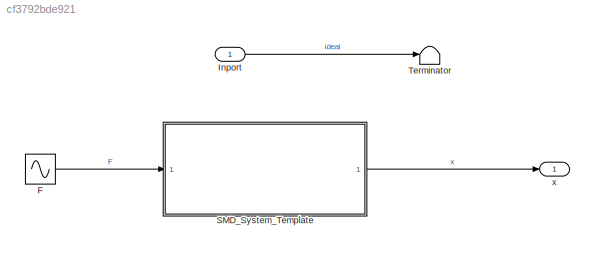
MODEL slx_cf3792bde921
KIND model
CONFIG AbsTol = auto
CONFIG EnableMultiTasking = off
CONFIG FixedStep = auto
CONFIG MaxStep = 0.01
CONFIG MinStep = auto
CONFIG RelTol = 1e-3
CONFIG SampleTimeConstraint = Unconstrained
CONFIG SolverName = VariableStepAuto
CONFIG StartTime = 0.0
CONFIG StopTime = 10
WORKSPACE source: mxarray member
WORKSPACE M = 10
WORKSPACE b = 50
WORKSPACE k = 100
BLOCK [Sin] F
  Commented = on
  SampleTime = 0
BLOCK [Inport] Inport
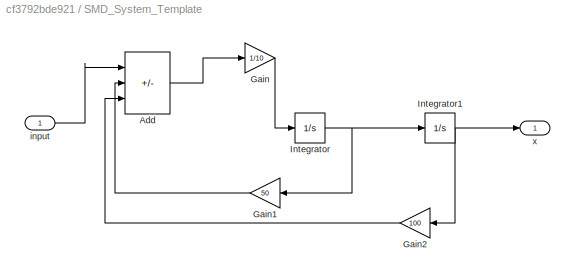
BLOCK [SubSystem] SMD_System_Template
BLOCK [Sum] SMD_System_Template/Add
  IconShape = rectangular
  Inputs = +--
BLOCK [Gain] SMD_System_Template/Gain
  Gain = 1/10
BLOCK [Gain] SMD_System_Template/Gain1
  Gain = 50
  NameLocation = top
BLOCK [Gain] SMD_System_Template/Gain2
  Gain = 100
  NameLocation = top
BLOCK [Integrator] SMD_System_Template/Integrator
BLOCK [Integrator] SMD_System_Template/Integrator1
BLOCK [Inport] SMD_System_Template/input
BLOCK [Outport] SMD_System_Template/x
BLOCK [Terminator] Terminator
BLOCK [Outport] x
LINE F:1 -> SMD_System_Template:1
LINE Inport:1 -> Terminator:1
LINE SMD_System_Template/Add:1 -> SMD_System_Template/Gain:1
LINE SMD_System_Template/Gain1:1 -> SMD_System_Template/Add:2
LINE SMD_System_Template/Gain2:1 -> SMD_System_Template/Add:3
LINE SMD_System_Template/Gain:1 -> SMD_System_Template/Integrator:1
NET SMD_System_Template/Integrator1:1 -> SMD_System_Template/Gain2:1, SMD_System_Template/x:1
NET SMD_System_Template/Integrator:1 -> SMD_System_Template/Gain1:1, SMD_System_Template/Integrator1:1
LINE SMD_System_Template/input:1 -> SMD_System_Template/Add:1
LINE SMD_System_Template:1 -> x:1
note: NET lines group one-source signal fan-out (src -> all destinations, sorted); 1:1 wires keep LINE
